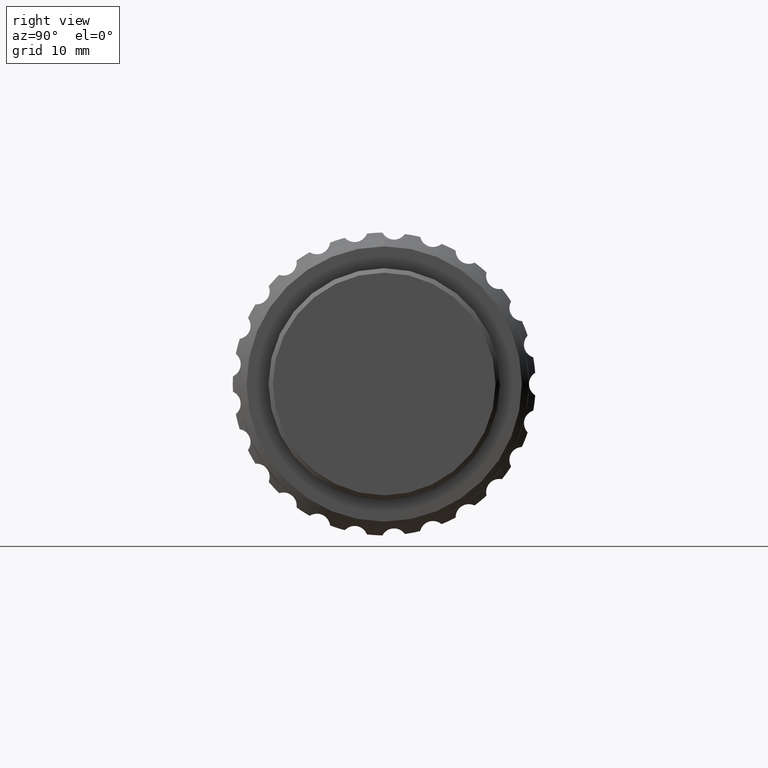
[diagram: clean part render]
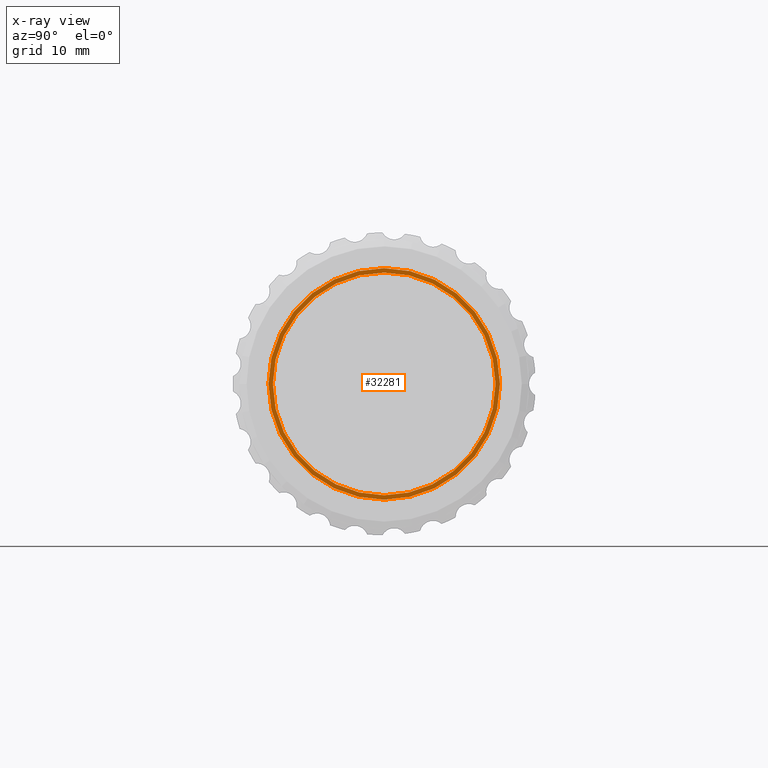
[diagram: x-ray — body ghosted, one internal face saturated and labeled with its STEP entity id]
A machine part, right view, then the same camera in x-ray: the body is ghosted and one INTERNAL B-rep face — a face not visible from any outside direction — is saturated and labeled: STEP entity #32281.
In plain terms, the highlighted planar face has unit normal (1, 0, 0).
Its self-contained STEP definition (entity closure, byte-faithful):
#636 = EDGE_CURVE ( 'NONE', #16647, #17729, #27159, .T. ) ;
#1372 = CARTESIAN_POINT ( 'NONE',  ( 95.99999999999998579, 1.530808498934191719E-15, -12.50000000000000178 ) ) ;
#1377 = CARTESIAN_POINT ( 'NONE',  ( 95.99999999999998579, 0.000000000000000000, 0.000000000000000000 ) ) ;
#1725 = CARTESIAN_POINT ( 'NONE',  ( 95.99999999999998579, 0.000000000000000000, 12.50000000000000178 ) ) ;
#2475 = CARTESIAN_POINT ( 'NONE',  ( 95.99999999999998579, 0.000000000000000000, -12.99999999999998934 ) ) ;
#2643 = DIRECTION ( 'NONE',  ( 0.000000000000000000, 0.000000000000000000, -1.000000000000000000 ) ) ;
#2796 = ORIENTED_EDGE ( 'NONE', *, *, #15958, .F. ) ;
#3371 = DIRECTION ( 'NONE',  ( -1.000000000000000000, -0.000000000000000000, -0.000000000000000000 ) ) ;
#3682 = CARTESIAN_POINT ( 'NONE',  ( 95.99999999999998579, 0.000000000000000000, 0.000000000000000000 ) ) ;
#4154 = AXIS2_PLACEMENT_3D ( 'NONE', #3682, #31346, #14051 ) ;
#4371 = ORIENTED_EDGE ( 'NONE', *, *, #30087, .T. ) ;
#5268 = VERTEX_POINT ( 'NONE', #1725 ) ;
#7347 = AXIS2_PLACEMENT_3D ( 'NONE', #2475, #27847, #2643 ) ;
#7827 = DIRECTION ( 'NONE',  ( 0.000000000000000000, 0.000000000000000000, 1.000000000000000000 ) ) ;
#8239 = AXIS2_PLACEMENT_3D ( 'NONE', #20340, #27763, #7827 ) ;
#9442 = CIRCLE ( 'NONE', #4154, 12.99999999999998934 ) ;
#9895 = FACE_OUTER_BOUND ( 'NONE', #10464, .T. ) ;
#9991 = AXIS2_PLACEMENT_3D ( 'NONE', #29048, #3371, #19003 ) ;
#10464 = EDGE_LOOP ( 'NONE', ( #4371, #16185 ) ) ;
#11275 = DIRECTION ( 'NONE',  ( 0.000000000000000000, 0.000000000000000000, 1.000000000000000000 ) ) ;
#12365 = PLANE ( 'NONE',  #7347 ) ;
#12420 = CARTESIAN_POINT ( 'NONE',  ( 95.99999999999998579, 0.000000000000000000, 12.99999999999998934 ) ) ;
#12660 = CARTESIAN_POINT ( 'NONE',  ( 95.99999999999998579, 1.592040838891557715E-15, -12.99999999999998934 ) ) ;
#14051 = DIRECTION ( 'NONE',  ( 0.000000000000000000, 0.000000000000000000, 1.000000000000000000 ) ) ;
#15958 = EDGE_CURVE ( 'NONE', #30035, #5268, #32056, .T. ) ;
#16185 = ORIENTED_EDGE ( 'NONE', *, *, #636, .T. ) ;
#16647 = VERTEX_POINT ( 'NONE', #12660 ) ;
#17729 = VERTEX_POINT ( 'NONE', #12420 ) ;
#18507 = ORIENTED_EDGE ( 'NONE', *, *, #31524, .F. ) ;
#19003 = DIRECTION ( 'NONE',  ( 0.000000000000000000, 0.000000000000000000, 1.000000000000000000 ) ) ;
#20340 = CARTESIAN_POINT ( 'NONE',  ( 95.99999999999998579, 0.000000000000000000, 0.000000000000000000 ) ) ;
#22615 = CIRCLE ( 'NONE', #9991, 12.50000000000000178 ) ;
#23787 = DIRECTION ( 'NONE',  ( -1.000000000000000000, -0.000000000000000000, -0.000000000000000000 ) ) ;
#27159 = CIRCLE ( 'NONE', #8239, 12.99999999999998934 ) ;
#27763 = DIRECTION ( 'NONE',  ( -1.000000000000000000, -0.000000000000000000, -0.000000000000000000 ) ) ;
#27847 = DIRECTION ( 'NONE',  ( 1.000000000000000000, 0.000000000000000000, 0.000000000000000000 ) ) ;
#29048 = CARTESIAN_POINT ( 'NONE',  ( 95.99999999999998579, 0.000000000000000000, 0.000000000000000000 ) ) ;
#29992 = FACE_BOUND ( 'NONE', #32225, .T. ) ;
#30035 = VERTEX_POINT ( 'NONE', #1372 ) ;
#30087 = EDGE_CURVE ( 'NONE', #17729, #16647, #9442, .T. ) ;
#31030 = AXIS2_PLACEMENT_3D ( 'NONE', #1377, #23787, #11275 ) ;
#31346 = DIRECTION ( 'NONE',  ( -1.000000000000000000, -0.000000000000000000, -0.000000000000000000 ) ) ;
#31524 = EDGE_CURVE ( 'NONE', #5268, #30035, #22615, .T. ) ;
#32056 = CIRCLE ( 'NONE', #31030, 12.50000000000000178 ) ;
#32225 = EDGE_LOOP ( 'NONE', ( #18507, #2796 ) ) ;
#32281 = ADVANCED_FACE ( 'NONE', ( #29992, #9895 ), #12365, .F. ) ;